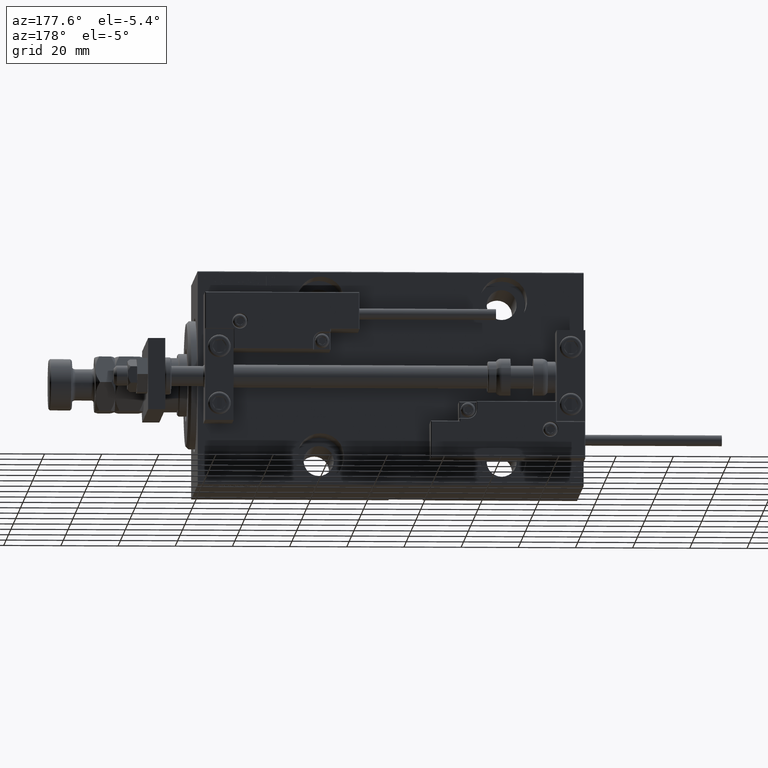
[diagram: clean part render]
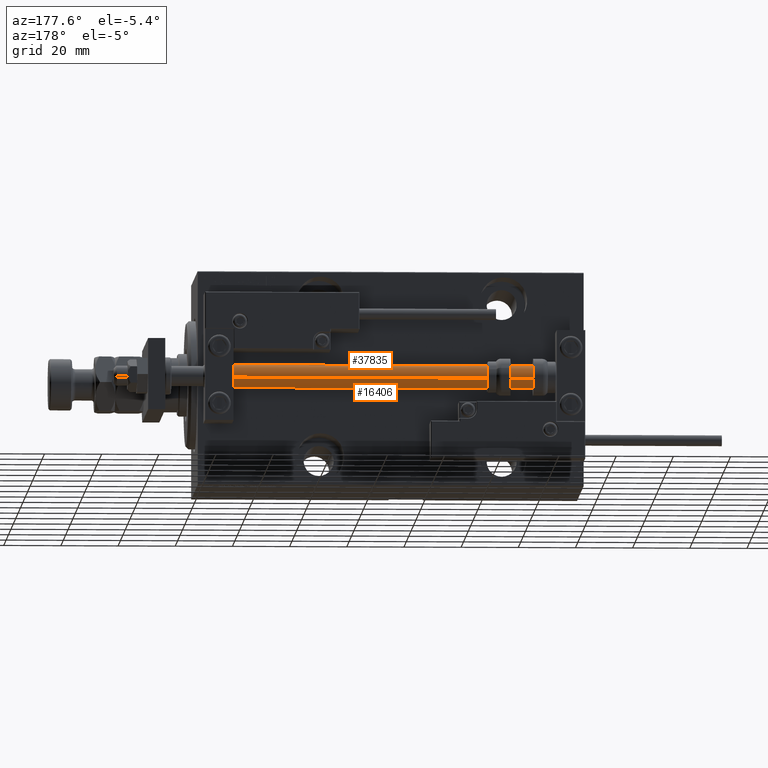
[diagram: same view with one multi-face feature highlighted, each face labeled with its STEP entity id]
A machine part, auxiliary view. The highlighted faces form ONE feature: a constant-radius fillet chain: 2 tangent blend faces with common blend radius 4 mm. The faces share edges in the B-rep.
Their STEP definitions:
[1] entity #16406 (Cylinder):
#284 = AXIS2_PLACEMENT_3D ( 'NONE', #28735, #12350, #24570 ) ;
#1427 = VECTOR ( 'NONE', #16210, 1000.000000000000000 ) ;
#4030 = EDGE_CURVE ( 'NONE', #37624, #51344, #11959, .T. ) ;
#4412 = ORIENTED_EDGE ( 'NONE', *, *, #4030, .T. ) ;
#4641 = DIRECTION ( 'NONE',  ( -0.000000000000000000, -0.000000000000000000, 1.000000000000000000 ) ) ;
#5865 = EDGE_CURVE ( 'NONE', #35574, #51344, #6261, .T. ) ;
#6261 = LINE ( 'NONE', #11195, #32813 ) ;
#6535 = CARTESIAN_POINT ( 'NONE',  ( 0.000000000000000000, 0.000000000000000000, 135.0000000000000000 ) ) ;
#9316 = ORIENTED_EDGE ( 'NONE', *, *, #5865, .F. ) ;
#9651 = ORIENTED_EDGE ( 'NONE', *, *, #36547, .F. ) ;
#10911 = EDGE_CURVE ( 'NONE', #29676, #37624, #51359, .T. ) ;
#11195 = CARTESIAN_POINT ( 'NONE',  ( -4.000000000000000000, 0.000000000000000000, 135.0000000000000000 ) ) ;
#11959 = CIRCLE ( 'NONE', #18613, 4.000000000000000000 ) ;
#12350 = DIRECTION ( 'NONE',  ( 0.000000000000000000, 0.000000000000000000, 1.000000000000000000 ) ) ;
#13453 = CARTESIAN_POINT ( 'NONE',  ( 0.000000000000000000, 0.000000000000000000, 2.000000000000029310 ) ) ;
#13508 = CARTESIAN_POINT ( 'NONE',  ( 4.000000000000000000, 4.898587196589412829E-16, 2.000000000000029310 ) ) ;
#13933 = CARTESIAN_POINT ( 'NONE',  ( -4.000000000000000000, 0.000000000000000000, 135.0000000000000000 ) ) ;
#15122 = FACE_OUTER_BOUND ( 'NONE', #48541, .T. ) ;
#16210 = DIRECTION ( 'NONE',  ( -0.000000000000000000, -0.000000000000000000, -1.000000000000000000 ) ) ;
#16406 = ADVANCED_FACE ( 'NONE', ( #15122 ), #46339, .T. ) ;
#16818 = CIRCLE ( 'NONE', #284, 4.000000000000000000 ) ;
#18613 = AXIS2_PLACEMENT_3D ( 'NONE', #13453, #4641, #20501 ) ;
#19868 = CARTESIAN_POINT ( 'NONE',  ( 4.000000000000000000, 4.898587196589412829E-16, 135.0000000000000000 ) ) ;
#20501 = DIRECTION ( 'NONE',  ( 1.000000000000000000, 0.000000000000000000, 0.000000000000000000 ) ) ;
#24570 = DIRECTION ( 'NONE',  ( 1.000000000000000000, 0.000000000000000000, 0.000000000000000000 ) ) ;
#25254 = CARTESIAN_POINT ( 'NONE',  ( -4.000000000000000000, 0.000000000000000000, 2.000000000000029310 ) ) ;
#28735 = CARTESIAN_POINT ( 'NONE',  ( 0.000000000000000000, 0.000000000000000000, 135.0000000000000000 ) ) ;
#29676 = VERTEX_POINT ( 'NONE', #42072 ) ;
#32813 = VECTOR ( 'NONE', #38799, 1000.000000000000000 ) ;
#34383 = DIRECTION ( 'NONE',  ( -0.000000000000000000, -0.000000000000000000, -1.000000000000000000 ) ) ;
#35574 = VERTEX_POINT ( 'NONE', #13933 ) ;
#36547 = EDGE_CURVE ( 'NONE', #29676, #35574, #16818, .T. ) ;
#37624 = VERTEX_POINT ( 'NONE', #13508 ) ;
#38206 = ORIENTED_EDGE ( 'NONE', *, *, #10911, .T. ) ;
#38799 = DIRECTION ( 'NONE',  ( -0.000000000000000000, -0.000000000000000000, -1.000000000000000000 ) ) ;
#41496 = AXIS2_PLACEMENT_3D ( 'NONE', #6535, #34383, #46606 ) ;
#42072 = CARTESIAN_POINT ( 'NONE',  ( 4.000000000000000000, 4.898587196589412829E-16, 135.0000000000000000 ) ) ;
#46339 = CYLINDRICAL_SURFACE ( 'NONE', #41496, 4.000000000000000000 ) ;
#46606 = DIRECTION ( 'NONE',  ( -1.000000000000000000, 0.000000000000000000, 0.000000000000000000 ) ) ;
#48541 = EDGE_LOOP ( 'NONE', ( #9651, #38206, #4412, #9316 ) ) ;
#51344 = VERTEX_POINT ( 'NONE', #25254 ) ;
#51359 = LINE ( 'NONE', #19868, #1427 ) ;
[2] entity #37835 (Cylinder):
#1427 = VECTOR ( 'NONE', #16210, 1000.000000000000000 ) ;
#2316 = DIRECTION ( 'NONE',  ( 0.000000000000000000, 0.000000000000000000, 1.000000000000000000 ) ) ;
#4036 = CARTESIAN_POINT ( 'NONE',  ( 0.000000000000000000, 0.000000000000000000, 2.000000000000029310 ) ) ;
#5865 = EDGE_CURVE ( 'NONE', #35574, #51344, #6261, .T. ) ;
#6209 = DIRECTION ( 'NONE',  ( 1.000000000000000000, 0.000000000000000000, 0.000000000000000000 ) ) ;
#6261 = LINE ( 'NONE', #11195, #32813 ) ;
#7945 = CIRCLE ( 'NONE', #26243, 4.000000000000000000 ) ;
#8097 = EDGE_CURVE ( 'NONE', #51344, #37624, #7945, .T. ) ;
#8125 = ORIENTED_EDGE ( 'NONE', *, *, #37584, .F. ) ;
#10911 = EDGE_CURVE ( 'NONE', #29676, #37624, #51359, .T. ) ;
#11195 = CARTESIAN_POINT ( 'NONE',  ( -4.000000000000000000, 0.000000000000000000, 135.0000000000000000 ) ) ;
#13508 = CARTESIAN_POINT ( 'NONE',  ( 4.000000000000000000, 4.898587196589412829E-16, 2.000000000000029310 ) ) ;
#13933 = CARTESIAN_POINT ( 'NONE',  ( -4.000000000000000000, 0.000000000000000000, 135.0000000000000000 ) ) ;
#14206 = DIRECTION ( 'NONE',  ( -0.000000000000000000, -0.000000000000000000, -1.000000000000000000 ) ) ;
#15228 = DIRECTION ( 'NONE',  ( 1.000000000000000000, 0.000000000000000000, 0.000000000000000000 ) ) ;
#15738 = EDGE_LOOP ( 'NONE', ( #43640, #8125, #44046, #27578 ) ) ;
#16210 = DIRECTION ( 'NONE',  ( -0.000000000000000000, -0.000000000000000000, -1.000000000000000000 ) ) ;
#16246 = DIRECTION ( 'NONE',  ( -0.000000000000000000, -0.000000000000000000, 1.000000000000000000 ) ) ;
#17341 = FACE_OUTER_BOUND ( 'NONE', #15738, .T. ) ;
#19868 = CARTESIAN_POINT ( 'NONE',  ( 4.000000000000000000, 4.898587196589412829E-16, 135.0000000000000000 ) ) ;
#25254 = CARTESIAN_POINT ( 'NONE',  ( -4.000000000000000000, 0.000000000000000000, 2.000000000000029310 ) ) ;
#26243 = AXIS2_PLACEMENT_3D ( 'NONE', #4036, #16246, #15228 ) ;
#27578 = ORIENTED_EDGE ( 'NONE', *, *, #8097, .T. ) ;
#29676 = VERTEX_POINT ( 'NONE', #42072 ) ;
#32813 = VECTOR ( 'NONE', #38799, 1000.000000000000000 ) ;
#35574 = VERTEX_POINT ( 'NONE', #13933 ) ;
#37195 = CARTESIAN_POINT ( 'NONE',  ( 0.000000000000000000, 0.000000000000000000, 135.0000000000000000 ) ) ;
#37584 = EDGE_CURVE ( 'NONE', #35574, #29676, #39243, .T. ) ;
#37624 = VERTEX_POINT ( 'NONE', #13508 ) ;
#37835 = ADVANCED_FACE ( 'NONE', ( #17341 ), #41551, .T. ) ;
#37899 = DIRECTION ( 'NONE',  ( -1.000000000000000000, 0.000000000000000000, 0.000000000000000000 ) ) ;
#38154 = CARTESIAN_POINT ( 'NONE',  ( 0.000000000000000000, 0.000000000000000000, 135.0000000000000000 ) ) ;
#38799 = DIRECTION ( 'NONE',  ( -0.000000000000000000, -0.000000000000000000, -1.000000000000000000 ) ) ;
#39243 = CIRCLE ( 'NONE', #41026, 4.000000000000000000 ) ;
#40907 = AXIS2_PLACEMENT_3D ( 'NONE', #38154, #14206, #37899 ) ;
#41026 = AXIS2_PLACEMENT_3D ( 'NONE', #37195, #2316, #6209 ) ;
#41551 = CYLINDRICAL_SURFACE ( 'NONE', #40907, 4.000000000000000000 ) ;
#42072 = CARTESIAN_POINT ( 'NONE',  ( 4.000000000000000000, 4.898587196589412829E-16, 135.0000000000000000 ) ) ;
#43640 = ORIENTED_EDGE ( 'NONE', *, *, #10911, .F. ) ;
#44046 = ORIENTED_EDGE ( 'NONE', *, *, #5865, .T. ) ;
#51344 = VERTEX_POINT ( 'NONE', #25254 ) ;
#51359 = LINE ( 'NONE', #19868, #1427 ) ;